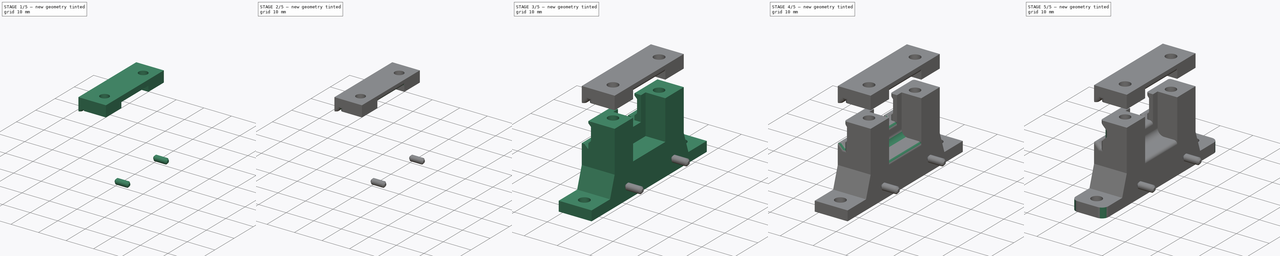
[diagram: build sequence overview — one tinted view per stage of 5, left to right]
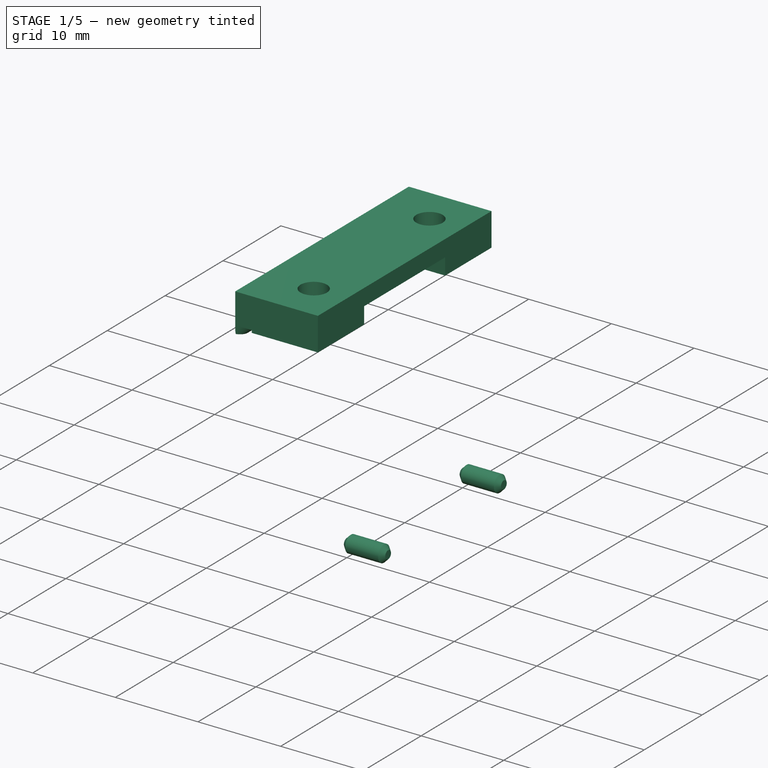
[diagram: stage 1 of 5 — iso view after this stage's code; geometry added in this stage tinted green]
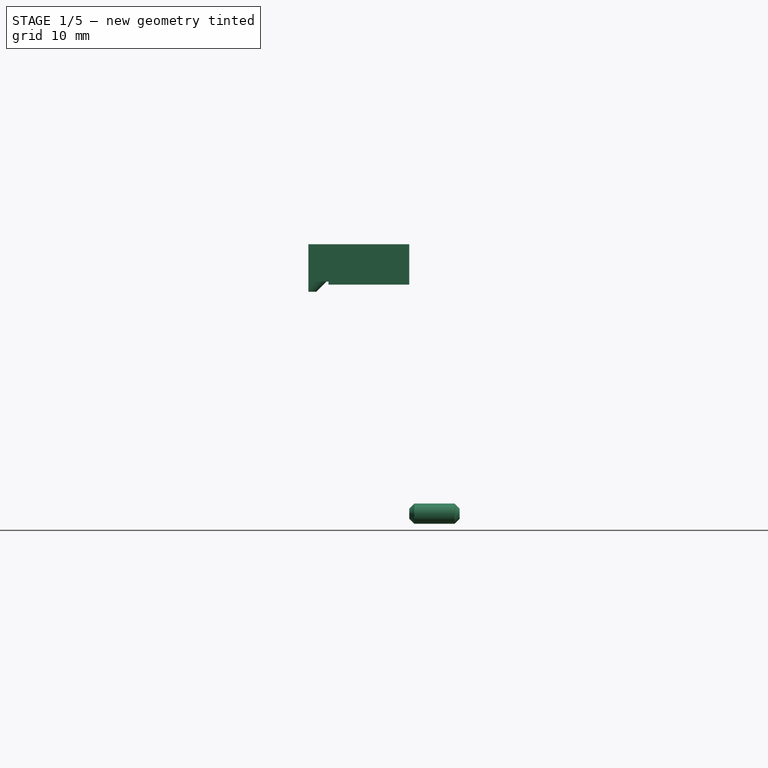
[diagram: stage 1 of 5 — front view after this stage's code; geometry added in this stage tinted green]
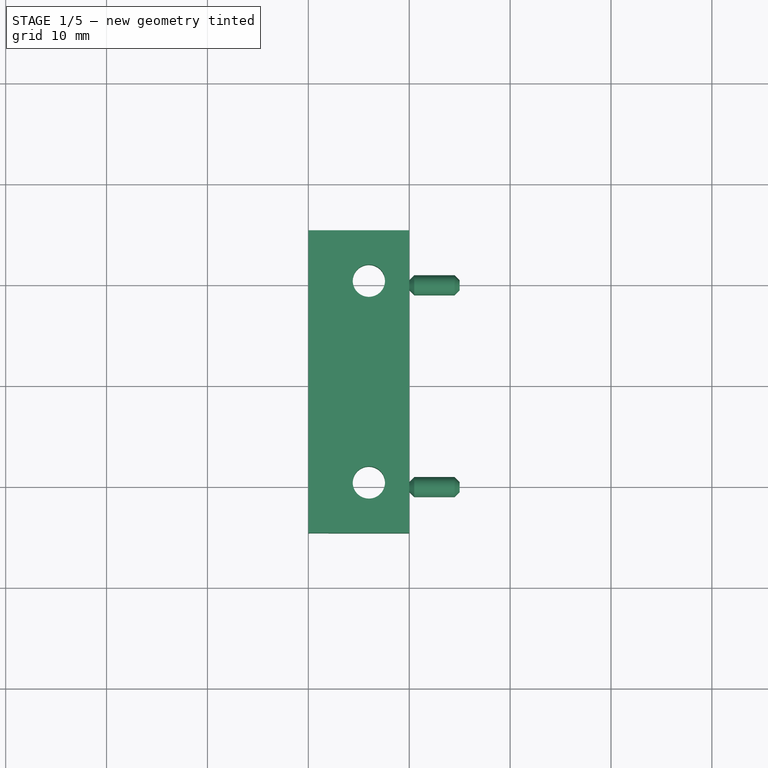
[diagram: stage 1 of 5 — top view after this stage's code; geometry added in this stage tinted green]
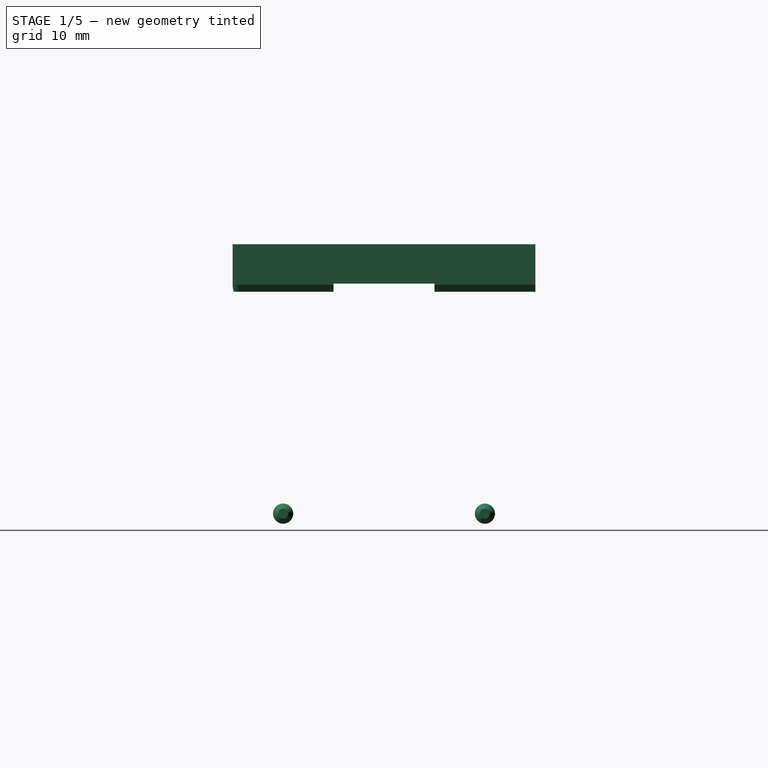
[diagram: stage 1 of 5 — right view after this stage's code; geometry added in this stage tinted green]
FCSTD DOCUMENT  (FreeCAD 0.14R3669 (Git) (Packman))
Label: gate3
License: CC-BY 3.0
LicenseURL: http://creativecommons.org/licenses/by/3.0/
objects: PartDesign::Fillet×24, Sketcher::SketchObject×12, PartDesign::Pocket×7, PartDesign::Pad×5, Part::Feature×4, Part::MultiFuse×3, Part::Box×2, Part::Cylinder×2, PartDesign::Chamfer×2
note: 73 computed .brp shape members not serialized (recipe doc carries the construction recipe); baked Part::Feature solids carry a one-line shape summary decoded from their .brp

FEATURE [PartDesign::Pad] Pad004
  Length = 30
  Length2 = 100
  Midplane = true
  Placement = pos=(0,0,0) rot=(1,0,0;1.5708rad)
  Sketch = -> Sketch001
  Type = 0
FEATURE [Sketcher::SketchObject] Sketch024
  ExternalGeometry = -> [Pad004]
  Placement = pos=(0,0,0) rot=(-0.707107,0,0.707107;3.14159rad)
  Support = -> Pad004 [Face3]
  sketch-geometry (4):
    g0: LineSegment StartX=-26.8 StartY=5 StartZ=0 EndX=-26 EndY=5 EndZ=0
    g1: LineSegment StartX=-26 StartY=5 StartZ=0 EndX=-26 EndY=-5 EndZ=0
    g2: LineSegment StartX=-26 StartY=-5 StartZ=0 EndX=-26.8 EndY=-5 EndZ=0
    g3: LineSegment StartX=-26.8 StartY=-5 StartZ=0 EndX=-26.8 EndY=5 EndZ=0
  constraints (12):
    c: Coincident(g0,g1)
    c: Coincident(g1,g2)
    c: Coincident(g2,g3)
    c: Coincident(g3,g0)
    c: Horizontal(g0)
    c: Horizontal(g2)
    c: Vertical(g1)
    c: Vertical(g3)
    c: Symmetric(g2,g0,g-1)
    c: DistanceY(g3) = 10
    c: DistanceX(g2) = -0.8
    c: PointOnObject(g0,g-3)
FEATURE [PartDesign::Pocket] Pocket002
  Length = 5
  Placement = pos=(0,0,0) rot=(1,0,0;1.5708rad)
  Sketch = -> Sketch024
  Type = 1
FEATURE [Sketcher::SketchObject] Sketch025
  ExternalGeometry = -> [Pocket002]
  Placement = pos=(10,0,0) rot=(0.707107,0,0.707107;3.14159rad)
  Support = -> Pocket002 [Face12]
  sketch-geometry (4):
    g0: LineSegment StartX=26.7 StartY=7 StartZ=0 EndX=28.7 EndY=7 EndZ=0
    g1: LineSegment StartX=28.7 StartY=7 StartZ=0 EndX=28.7 EndY=-7 EndZ=0
    g2: LineSegment StartX=28.7 StartY=-7 StartZ=0 EndX=26.7 EndY=-7 EndZ=0
    g3: LineSegment StartX=26.7 StartY=-7 StartZ=0 EndX=26.7 EndY=7 EndZ=0
  constraints (12):
    c: Coincident(g0,g1)
    c: Coincident(g1,g2)
    c: Coincident(g2,g3)
    c: Coincident(g3,g0)
    c: Horizontal(g0)
    c: Horizontal(g2)
    c: Vertical(g1)
    c: Vertical(g3)
    c: PointOnObject(g0,g-3)
    c: Symmetric(g1,g0,g-1)
    c: DistanceY(g1) = -14
    c: DistanceX(g2) = -2
FEATURE [PartDesign::Pocket] Pocket003
  Length = 6
  Placement = pos=(0,0,0) rot=(1,0,0;1.5708rad)
  Sketch = -> Sketch025
  Type = 0
FEATURE [Sketcher::SketchObject] Sketch027
  Placement = pos=(0,0,30.7) rot=(0,0,1;3.14159rad)
  Support = -> Pocket003 [Face11]
  sketch-geometry (2):
    g0: Circle CenterX=-6 CenterY=10 CenterZ=0 NormalX=0 NormalY=0 NormalZ=1 Radius=1.6
    g1: Circle CenterX=-6 CenterY=-10 CenterZ=0 NormalX=0 NormalY=0 NormalZ=1 Radius=1.6
  constraints (5):
    c: Equal(g1,g0)
    c: Symmetric(g0,g1,g-1)
    c: Radius(g0) = 1.6
    c: DistanceX(g-1,g0) = -6
    c: DistanceY(g-1,g0) = 10
FEATURE [PartDesign::Pocket] Pocket005
  Length = 5
  Placement = pos=(0,0,0) rot=(1,0,0;1.5708rad)
  Sketch = -> Sketch027
  Type = 1
FEATURE [PartDesign::Fillet] Fillet006
  Base = -> Pocket005 [Edge7]
  Placement = pos=(0,0,0) rot=(1,0,0;1.5708rad)
  Radius = 1
FEATURE [Part::Feature] Fillet023001  label="Top002"
  shape: bbox 10.31 x 30 x 5.1 mm, 35 faces (baked)
FEATURE [Part::Feature] Fusion002001  label="Body001"
  shape: bbox 10.6 x 50 x 22.2 mm, 97 faces (baked)
FEATURE [Part::Feature] Fusion002001_solid  label="Body001 (Solid)"
  shape: bbox 10.6 x 50 x 22.2 mm, 97 faces (baked)
FEATURE [Part::Feature] Fillet023001_solid  label="Top002 (Solid)"
  Placement = pos=(25,0,-25) rot=(0,0,1;3.14159rad)
  shape: bbox 10.31 x 30 x 5.1 mm, 35 faces (baked)
FEATURE [Part::Cylinder] Cylinder
  Angle = 360
  Height = 5
  Placement = pos=(10,-10,4) rot=(0.707107,0,0.707107;3.14159rad)
  Radius = 1
FEATURE [PartDesign::Chamfer] Chamfer
  Base = -> Cylinder [Edge1,Edge3]
  Placement = pos=(10,-10,4) rot=(0.707107,0,0.707107;3.14159rad)
  Size = 0.5
FEATURE [Part::Cylinder] Cylinder001
  Angle = 360
  Height = 5
  Placement = pos=(10,10,4) rot=(0.707107,0,0.707107;3.14159rad)
  Radius = 1
FEATURE [PartDesign::Chamfer] Chamfer001
  Base = -> Cylinder001 [Edge1,Edge3]
  Placement = pos=(10,10,4) rot=(0.707107,0,0.707107;3.14159rad)
  Size = 0.5
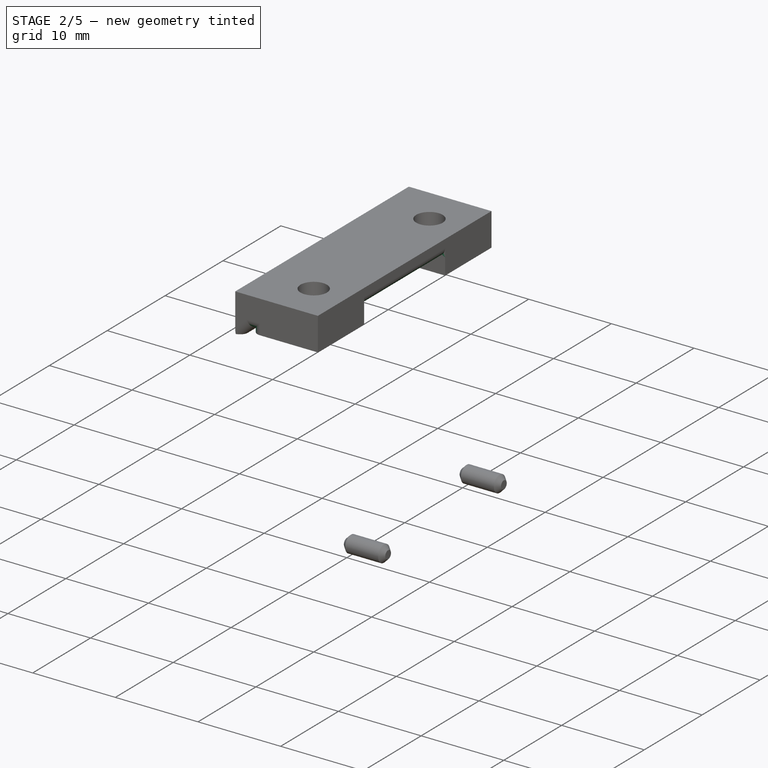
[diagram: stage 2 of 5 — iso view after this stage's code; geometry added in this stage tinted green]
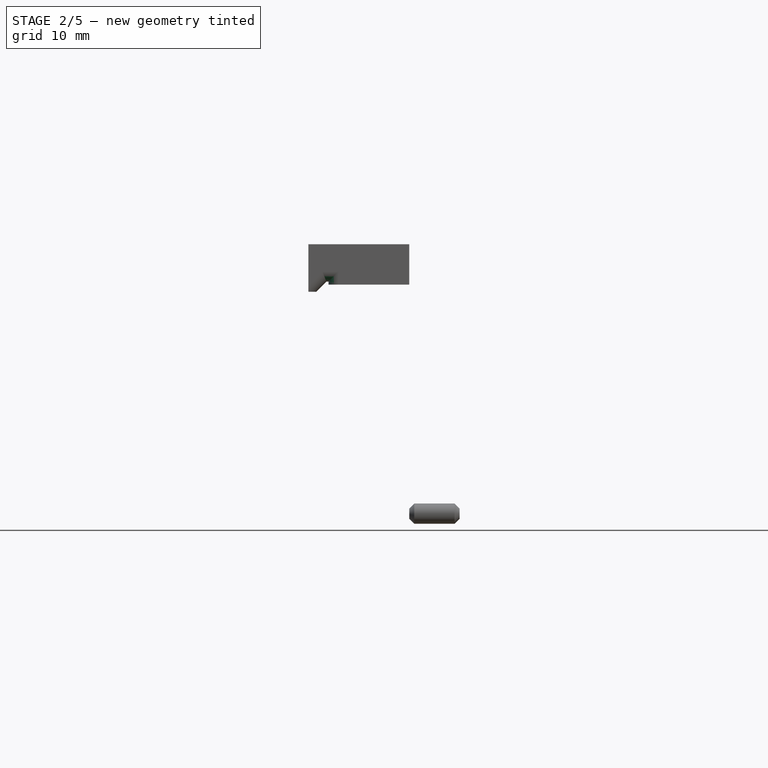
[diagram: stage 2 of 5 — front view after this stage's code; geometry added in this stage tinted green]
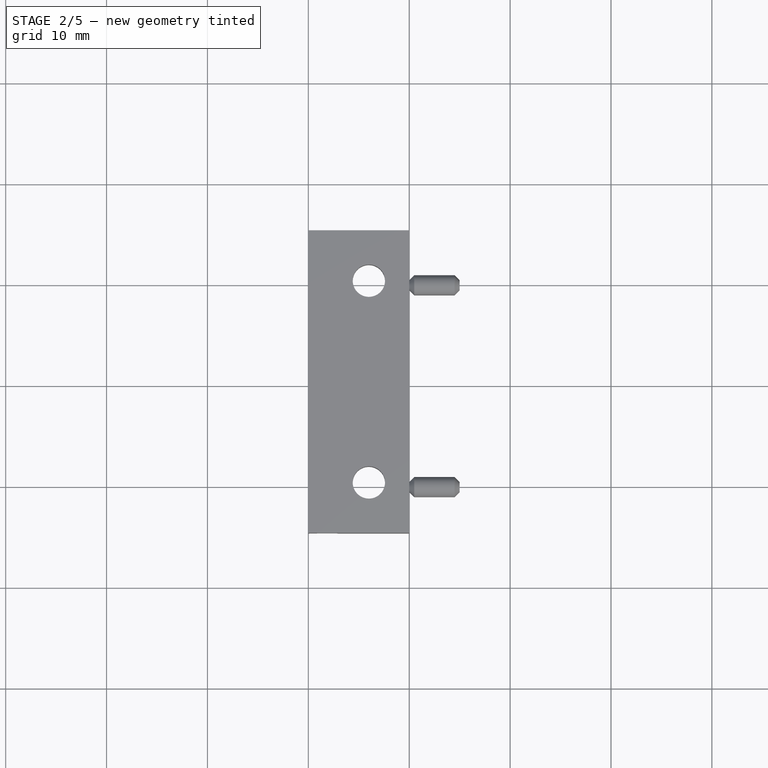
[diagram: stage 2 of 5 — top view after this stage's code; geometry added in this stage tinted green]
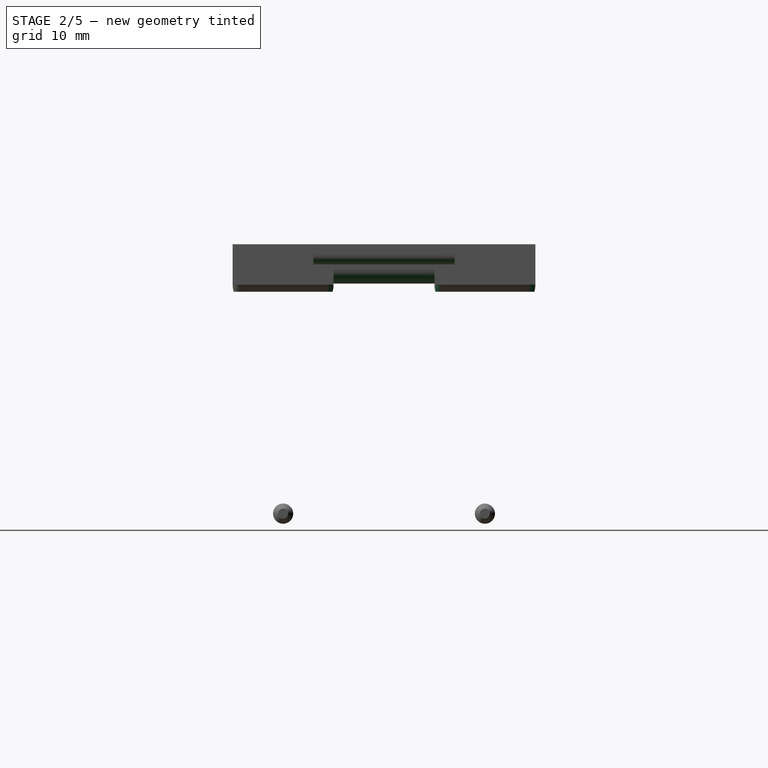
[diagram: stage 2 of 5 — right view after this stage's code; geometry added in this stage tinted green]
FEATURE [PartDesign::Fillet] Fillet007
  Base = -> Fillet006 [Edge6]
  Placement = pos=(0,0,0) rot=(1,0,0;1.5708rad)
  Radius = 1
FEATURE [PartDesign::Fillet] Fillet008
  Base = -> Fillet007 [Edge11]
  Placement = pos=(0,0,0) rot=(1,0,0;1.5708rad)
  Radius = 1
FEATURE [PartDesign::Fillet] Fillet009
  Base = -> Fillet008 [Edge5]
  Placement = pos=(0,0,0) rot=(1,0,0;1.5708rad)
  Radius = 1
FEATURE [PartDesign::Fillet] Fillet010
  Base = -> Fillet009 [Edge24,Edge25]
  Placement = pos=(0,0,0) rot=(1,0,0;1.5708rad)
  Radius = 1
FEATURE [PartDesign::Fillet] Fillet012
  Base = -> Fillet010 [Edge85]
  Placement = pos=(0,0,0) rot=(1,0,0;1.5708rad)
  Radius = 1.5
FEATURE [PartDesign::Fillet] Fillet015
  Base = -> Fillet012 [Edge60]
  Placement = pos=(0,0,0) rot=(1,0,0;1.5708rad)
  Radius = 1
FEATURE [PartDesign::Fillet] Fillet020  label="Top"
  Base = -> Fillet015 [Edge78]
  Placement = pos=(0,0,0) rot=(1,0,0;1.5708rad)
  Radius = 1
FEATURE [PartDesign::Fillet] Fillet022
  Base = -> Fillet020 [Edge48]
  Placement = pos=(0,0,0) rot=(1,0,0;1.5708rad)
  Radius = 1
FEATURE [PartDesign::Fillet] Fillet023  label="Top1"
  Base = -> Fillet022 [Edge54]
  Placement = pos=(0,0,0) rot=(1,0,0;1.5708rad)
  Radius = 1
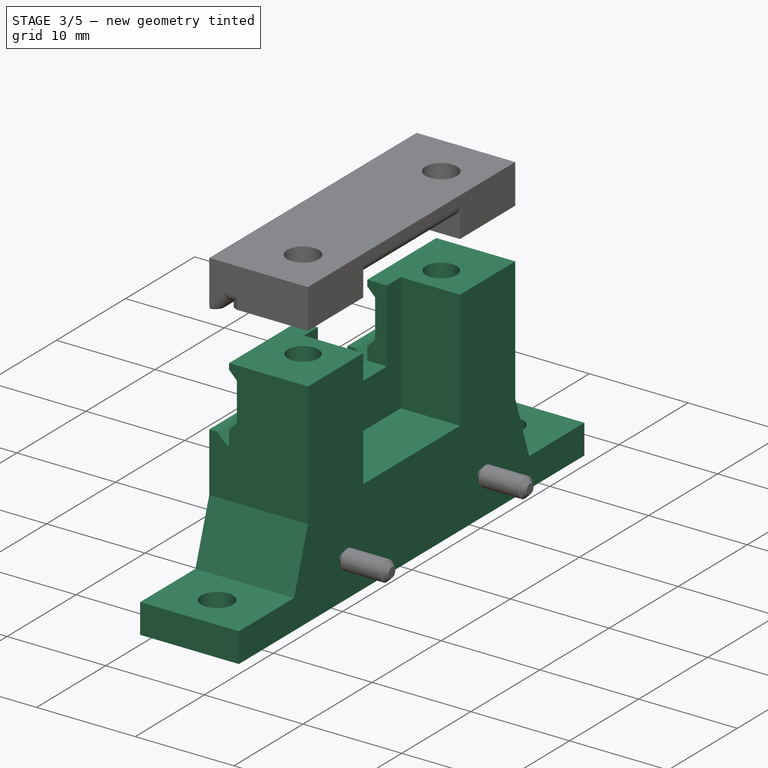
[diagram: stage 3 of 5 — iso view after this stage's code; geometry added in this stage tinted green]
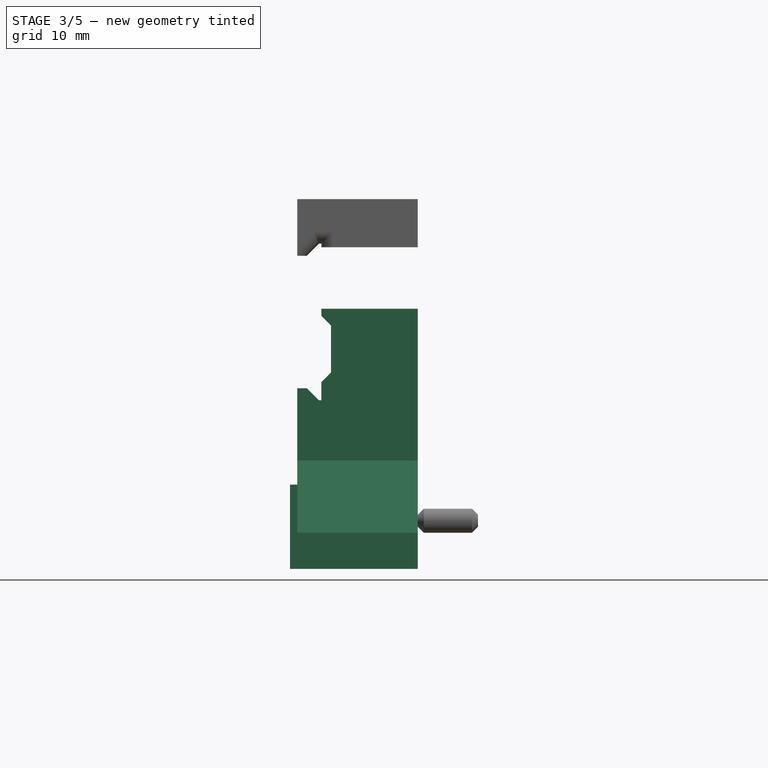
[diagram: stage 3 of 5 — front view after this stage's code; geometry added in this stage tinted green]
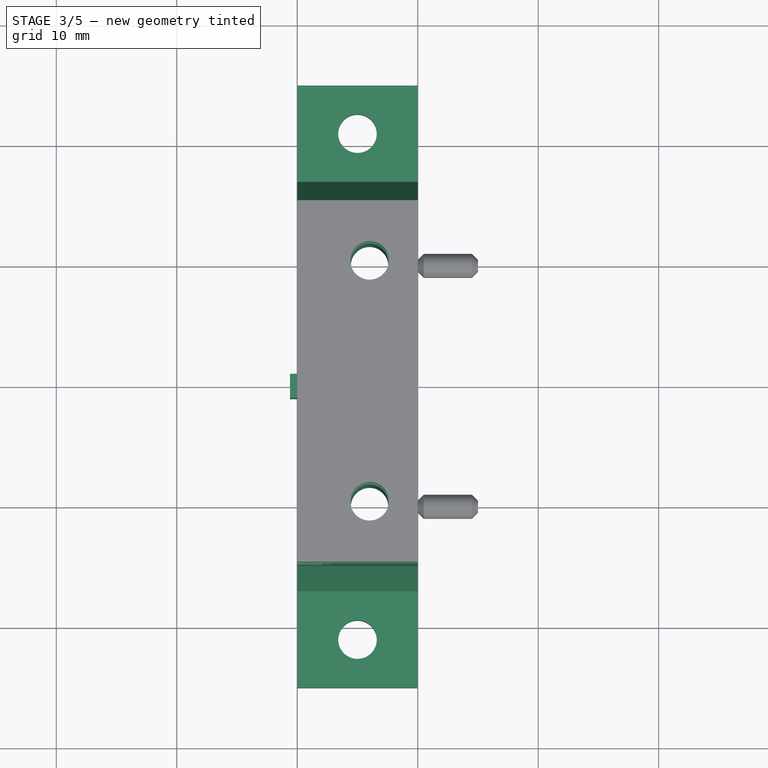
[diagram: stage 3 of 5 — top view after this stage's code; geometry added in this stage tinted green]
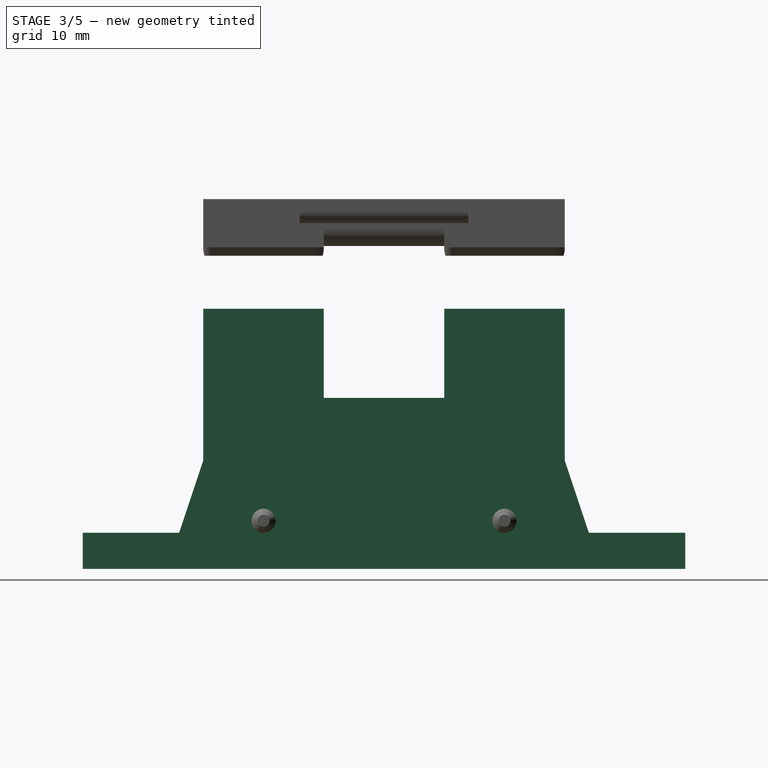
[diagram: stage 3 of 5 — right view after this stage's code; geometry added in this stage tinted green]
FEATURE [Sketcher::SketchObject] Sketch
  Placement = pos=(0,0,0) rot=(1,0,0;1.5708rad)
  sketch-geometry (14):
    g0: LineSegment StartX=0 StartY=0 StartZ=0 EndX=10 EndY=0 EndZ=0
    g1: LineSegment StartX=2.8 StartY=16.3 StartZ=0 EndX=2 EndY=15.5 EndZ=0
    g2: LineSegment StartX=2 StartY=15.5 StartZ=0 EndX=2 EndY=14 EndZ=0
    g3: LineSegment StartX=0.8 StartY=15 StartZ=0 EndX=0 EndY=15 EndZ=0
    g4: LineSegment StartX=0 StartY=15 StartZ=0 EndX=0 EndY=0 EndZ=0
    g5: LineSegment StartX=10 StartY=0 StartZ=0 EndX=10 EndY=21.6 EndZ=0
    g6: LineSegment StartX=2 StartY=21.6 StartZ=0 EndX=10 EndY=21.6 EndZ=0
    g7: LineSegment StartX=2 StartY=14 StartZ=0 EndX=1.8 EndY=14 EndZ=0
    g8: LineSegment StartX=0.8 StartY=15 StartZ=0 EndX=1.8 EndY=14 EndZ=0
    g9: GeomPoint [constr] X=1.8 Y=14 Z=0
    g10: LineSegment StartX=2.8 StartY=16.3 StartZ=0 EndX=2.8 EndY=20.2 EndZ=0
    g11: LineSegment StartX=2.8 StartY=20.2 StartZ=0 EndX=2 EndY=21 EndZ=0
    g12: LineSegment StartX=2 StartY=21 StartZ=0 EndX=2 EndY=21.6 EndZ=0
    g13: GeomPoint [constr] X=2 Y=21.6 Z=0
  constraints (37):
    c: Horizontal(g0)
    c: Coincident(g1,g2)
    c: Vertical(g2)
    c: Coincident(g3,g4)
    c: Coincident(g4,g-1)
    c: Vertical(g4)
    c: DistanceX(g0) = 10
    c: DistanceY(g-1,g2) = 14
    c: DistanceX(g1,g2) = -0.8
    c: Horizontal(g3)
    c: Coincident(g0,g-1)
    c: DistanceY(g2,g3) = 1
    c: DistanceX(g1,g3) = -2
    c: Coincident(g5,g0)
    c: Vertical(g5)
    c: Horizontal(g6)
    c: Coincident(g6,g5)
    c: DistanceX(g3) = -0.8
    c: Coincident(g7,g2)
    c: Horizontal(g7)
    c: DistanceX(g7) = -0.2
    c: Coincident(g8,g3)
    c: Coincident(g9,g8)
    c: Coincident(g7,g8)
    c: Coincident(g1,g10)
    c: Vertical(g10)
    c: Coincident(g10,g11)
    c: Coincident(g11,g12)
    c: Vertical(g12)
    c: Coincident(g13,g12)
    c: Coincident(g6,g12)
    c: DistanceY(g12) = 0.6
    c: DistanceX(g-1,g6) = 2
    c: Angle(g11,g10) = 2.35619
    c: DistanceY(g6,g2) = -7.6
    c: DistanceY(g2) = -1.5
    c: Angle(g10,g1) = 2.35619
FEATURE [Sketcher::SketchObject] Sketch020
  Placement = pos=(0,0,0) rot=(1,0,0;3.14159rad)
  sketch-geometry (10):
    g0: LineSegment StartX=0 StartY=15 StartZ=0 EndX=10 EndY=15 EndZ=0
    g1: LineSegment StartX=10 StartY=15 StartZ=0 EndX=10 EndY=25 EndZ=0
    g2: LineSegment StartX=10 StartY=25 StartZ=0 EndX=0 EndY=25 EndZ=0
    g3: LineSegment StartX=0 StartY=25 StartZ=0 EndX=0 EndY=15 EndZ=0
    g4: LineSegment StartX=0 StartY=-15 StartZ=0 EndX=10 EndY=-15 EndZ=0
    g5: LineSegment StartX=10 StartY=-15 StartZ=0 EndX=10 EndY=-25 EndZ=0
    g6: LineSegment StartX=10 StartY=-25 StartZ=0 EndX=0 EndY=-25 EndZ=0
    g7: LineSegment StartX=0 StartY=-25 StartZ=0 EndX=0 EndY=-15 EndZ=0
    g8: Circle CenterX=5 CenterY=21 CenterZ=0 NormalX=0 NormalY=0 NormalZ=1 Radius=1.6
    g9: Circle CenterX=5 CenterY=-21 CenterZ=0 NormalX=0 NormalY=0 NormalZ=1 Radius=1.6
  constraints (36):
    c: Coincident(g0,g1)
    c: Coincident(g1,g2)
    c: Coincident(g2,g3)
    c: Coincident(g3,g0)
    c: PointOnObject(g0,g-2)
    c: Coincident(g4,g5)
    c: Coincident(g5,g6)
    c: Coincident(g6,g7)
    c: Coincident(g7,g4)
    c: PointOnObject(g4,g-2)
    c: Equal(g0,g4)
    c: Equal(g5,g4)
    c: Symmetric(g0,g4,g-1)
    c: DistanceY(g-1,g0) = 15
    c: Equal(g2,g1)
    c: Symmetric(g9,g8,g-1)
    c: DistanceX(g8,g0) = -5
    c: DistanceY(g8,g0) = -6
    c: Vertical(g1)
    c: Vertical(g3)
    c: Horizontal(g2)
    c: DistanceY(g1) = 10
    c: DistanceY(g7) = 10
    c: Horizontal(g6)
    c: Vertical(g5)
    c: Vertical(g7)
    c: Horizontal(g0)
    c: Equal(g7,g4)
    c: Equal(g4,g5)
    c: Equal(g5,g6)
    c: Equal(g3,g2)
    c: Equal(g2,g1)
    c: Equal(g1,g0)
    c: Equal(g3,g2)
    c: Radius(g8) = 1.6
    c: Equal(g9,g8)
FEATURE [PartDesign::Pad] Pad002
  Length = 3
  Length2 = 100
  Placement = pos=(0,0,0) rot=(1,0,0;3.14159rad)
  Reversed = true
  Sketch = -> Sketch020
  Type = 0
FEATURE [Sketcher::SketchObject] Sketch001
  Placement = pos=(0,0,0) rot=(1,0,0;1.5708rad)
  sketch-geometry (8):
    g0: LineSegment StartX=1.8 StartY=27 StartZ=0 EndX=0.8 EndY=26 EndZ=0
    g1: LineSegment StartX=0 StartY=26 StartZ=0 EndX=0 EndY=30.7 EndZ=0
    g2: LineSegment StartX=0 StartY=30.7 StartZ=0 EndX=10 EndY=30.7 EndZ=0
    g3: LineSegment StartX=2 StartY=26.7 StartZ=0 EndX=10 EndY=26.7 EndZ=0
    g4: LineSegment StartX=10 StartY=30.7 StartZ=0 EndX=10 EndY=26.7 EndZ=0
    g5: LineSegment StartX=0 StartY=26 StartZ=0 EndX=0.8 EndY=26 EndZ=0
    g6: LineSegment StartX=1.8 StartY=27 StartZ=0 EndX=2 EndY=27 EndZ=0
    g7: LineSegment StartX=2 StartY=26.7 StartZ=0 EndX=2 EndY=27 EndZ=0
  constraints (23):
    c: Coincident(g1,g2)
    c: DistanceX(g1,g2) = 10
    c: Tangent(g1,g-2)
    c: Coincident(g4,g2)
    c: Vertical(g4)
    c: Horizontal(g2)
    c: Horizontal(g3)
    c: Coincident(g3,g4)
    c: Coincident(g5,g1)
    c: Coincident(g5,g0)
    c: Angle(g0,g5) = 2.35619
    c: Horizontal(g5)
    c: Coincident(g6,g0)
    c: Horizontal(g6)
    c: DistanceX(g6) = 0.2
    c: Coincident(g7,g3)
    c: Vertical(g7)
    c: Coincident(g6,g7)
    c: DistanceX(g5) = 0.8
    c: DistanceY(g7) = 0.3
    c: DistanceY(g4) = -4
    c: DistanceX(g-1,g6) = 2
    c: DistanceY(g-1,g1) = 26
FEATURE [PartDesign::Pad] Pad
  Length = 30
  Length2 = 100
  Midplane = true
  Placement = pos=(0,0,0) rot=(1,0,0;1.5708rad)
  Sketch = -> Sketch
  Type = 0
FEATURE [Sketcher::SketchObject] Sketch021
  Placement = pos=(10,0,0) rot=(0.707107,0,0.707107;3.14159rad)
  Support = -> Pad [Face4]
  sketch-geometry (6):
    g0: LineSegment StartX=3 StartY=-17 StartZ=0 EndX=9 EndY=-15 EndZ=0
    g1: LineSegment StartX=9 StartY=-15 StartZ=0 EndX=3 EndY=-15 EndZ=0
    g2: LineSegment StartX=3 StartY=-15 StartZ=0 EndX=3 EndY=-17 EndZ=0
    g3: LineSegment StartX=3 StartY=15 StartZ=0 EndX=9 EndY=15 EndZ=0
    g4: LineSegment StartX=9 StartY=15 StartZ=0 EndX=3 EndY=17 EndZ=0
    g5: LineSegment StartX=3 StartY=17 StartZ=0 EndX=3 EndY=15 EndZ=0
  constraints (17):
    c: Coincident(g0,g1)
    c: Horizontal(g1)
    c: Coincident(g1,g2)
    c: Coincident(g2,g0)
    c: Vertical(g2)
    c: Horizontal(g3)
    c: Coincident(g3,g4)
    c: Coincident(g4,g5)
    c: Coincident(g5,g3)
    c: Vertical(g5)
    c: DistanceY(g5) = -2
    c: DistanceX(g3) = 6
    c: DistanceX(g-1,g3) = 3
    c: Equal(g1,g3)
    c: Equal(g2,g5)
    c: Symmetric(g1,g3,g-1)
    c: DistanceY(g-1,g3) = 15
FEATURE [PartDesign::Pad] Pad005
  Length = 10
  Length2 = 100
  Placement = pos=(0,0,0) rot=(1,0,0;1.5708rad)
  Reversed = true
  Sketch = -> Sketch021
  Type = 0
FEATURE [Sketcher::SketchObject] Sketch022
  ExternalGeometry = -> [Pad005]
  Placement = pos=(10,0,0) rot=(0.707107,0,0.707107;3.14159rad)
  Support = -> Pad005 [Face13]
  sketch-geometry (4):
    g0: LineSegment StartX=9.6 StartY=7 StartZ=0 EndX=21.6 EndY=7 EndZ=0
    g1: LineSegment StartX=21.6 StartY=7 StartZ=0 EndX=21.6 EndY=-7 EndZ=0
    g2: LineSegment StartX=21.6 StartY=-7 StartZ=0 EndX=9.6 EndY=-7 EndZ=0
    g3: LineSegment StartX=9.6 StartY=-7 StartZ=0 EndX=9.6 EndY=7 EndZ=0
  constraints (12):
    c: Coincident(g0,g1)
    c: Coincident(g1,g2)
    c: Coincident(g2,g3)
    c: Coincident(g3,g0)
    c: Horizontal(g0)
    c: Horizontal(g2)
    c: Vertical(g1)
    c: Vertical(g3)
    c: DistanceX(g0) = 12
    c: PointOnObject(g0,g-3)
    c: DistanceY(g3) = 14
    c: Symmetric(g2,g0,g-1)
FEATURE [PartDesign::Pocket] Pocket
  Length = 6
  Placement = pos=(0,0,0) rot=(1,0,0;1.5708rad)
  Sketch = -> Sketch022
  Type = 0
FEATURE [Sketcher::SketchObject] Sketch023
  Placement = pos=(4,0,0) rot=(0.707107,0,0.707107;3.14159rad)
  Support = -> Pocket [Face28]
  sketch-geometry (4):
    g0: LineSegment StartX=14.2 StartY=5 StartZ=0 EndX=21.6 EndY=5 EndZ=0
    g1: LineSegment StartX=21.6 StartY=5 StartZ=0 EndX=21.6 EndY=-5 EndZ=0
    g2: LineSegment StartX=21.6 StartY=-5 StartZ=0 EndX=14.2 EndY=-5 EndZ=0
    g3: LineSegment StartX=14.2 StartY=-5 StartZ=0 EndX=14.2 EndY=5 EndZ=0
  constraints (11):
    c: Coincident(g0,g1)
    c: Coincident(g1,g2)
    c: Coincident(g2,g3)
    c: Coincident(g3,g0)
    c: Horizontal(g0)
    c: Horizontal(g2)
    c: Vertical(g1)
    c: Vertical(g3)
    c: Symmetric(g0,g2,g-1)
    c: DistanceX(g0) = 7.4
    c: DistanceY(g3) = 10
FEATURE [PartDesign::Pocket] Pocket001
  Length = 5
  Placement = pos=(0,0,0) rot=(1,0,0;1.5708rad)
  Sketch = -> Sketch023
  Type = 1
FEATURE [Sketcher::SketchObject] Sketch026
  Placement = pos=(0,0,21.6) rot=(0,0,1;3.14159rad)
  Support = -> Pocket001 [Face29]
  sketch-geometry (2):
    g0: Circle CenterX=-6 CenterY=10 CenterZ=0 NormalX=0 NormalY=0 NormalZ=1 Radius=1.55
    g1: Circle CenterX=-6 CenterY=-10 CenterZ=0 NormalX=0 NormalY=0 NormalZ=1 Radius=1.55
  constraints (5):
    c: Symmetric(g1,g0,g-1)
    c: Equal(g0,g1)
    c: Radius(g0) = 1.55
    c: DistanceY(g-1,g0) = 10
    c: DistanceX(g-1,g0) = -6
FEATURE [PartDesign::Pocket] Pocket004
  Length = 5
  Placement = pos=(0,0,0) rot=(1,0,0;1.5708rad)
  Sketch = -> Sketch026
  Type = 1
FEATURE [Sketcher::SketchObject] Sketch028
  Placement = pos=(0,0,0) rot=(1,0,0;3.14159rad)
  Support = -> Pocket004 [Face17]
  sketch-geometry (20):
    g0: LineSegment StartX=3.2 StartY=11.6166 StartZ=0 EndX=6 EndY=13.2332 EndZ=0
    g1: LineSegment StartX=6 StartY=13.2332 StartZ=0 EndX=8.8 EndY=11.6166 EndZ=0
    g2: LineSegment StartX=8.8 StartY=11.6166 StartZ=0 EndX=8.8 EndY=8.38342 EndZ=0
    g3: LineSegment StartX=8.8 StartY=8.38342 StartZ=0 EndX=6 EndY=6.76684 EndZ=0
    g4: LineSegment StartX=6 StartY=6.76684 StartZ=0 EndX=3.2 EndY=8.38342 EndZ=0
    g5: LineSegment StartX=3.2 StartY=8.38342 StartZ=0 EndX=3.2 EndY=11.6166 EndZ=0
    g6: LineSegment [constr] StartX=3.2 StartY=8.38342 StartZ=0 EndX=8.8 EndY=11.6166 EndZ=0
    g7: LineSegment [constr] StartX=6 StartY=6.76684 StartZ=0 EndX=6 EndY=13.2332 EndZ=0
    g8: LineSegment [constr] StartX=3.2 StartY=11.6166 StartZ=0 EndX=8.8 EndY=8.38342 EndZ=0
    g9: GeomPoint [constr] X=6 Y=10 Z=0
    g10: GeomPoint [constr] X=6 Y=-10 Z=0
    g11: LineSegment StartX=6 StartY=-6.76684 StartZ=0 EndX=8.8 EndY=-8.38342 EndZ=0
    g12: LineSegment StartX=8.8 StartY=-8.38342 StartZ=0 EndX=8.8 EndY=-11.6166 EndZ=0
    g13: LineSegment StartX=8.8 StartY=-11.6166 StartZ=0 EndX=6 EndY=-13.2332 EndZ=0
    g14: LineSegment StartX=6 StartY=-13.2332 StartZ=0 EndX=3.2 EndY=-11.6166 EndZ=0
    g15: LineSegment StartX=3.2 StartY=-11.6166 StartZ=0 EndX=3.2 EndY=-8.38342 EndZ=0
    g16: LineSegment StartX=3.2 StartY=-8.38342 StartZ=0 EndX=6 EndY=-6.76684 EndZ=0
    g17: LineSegment [constr] StartX=6 StartY=-6.76684 StartZ=0 EndX=6 EndY=-13.2332 EndZ=0
    g18: LineSegment [constr] StartX=3.2 StartY=-11.6166 StartZ=0 EndX=8.8 EndY=-8.38342 EndZ=0
    g19: LineSegment [constr] StartX=3.2 StartY=-8.38342 StartZ=0 EndX=8.8 EndY=-11.6166 EndZ=0
  constraints (52):
    c: Coincident(g0,g1)
    c: Coincident(g1,g2)
    c: Vertical(g2)
    c: Coincident(g2,g3)
    c: Coincident(g3,g4)
    c: Coincident(g4,g5)
    c: Coincident(g5,g0)
    c: Vertical(g5)
    c: Coincident(g6,g4)
    c: Coincident(g6,g1)
    c: Coincident(g7,g3)
    c: Coincident(g7,g0)
    c: Coincident(g8,g0)
    c: Coincident(g8,g2)
    c: Equal(g8,g7)
    c: Equal(g7,g6)
    c: Equal(g4,g3)
    c: Equal(g3,g2)
    c: Equal(g2,g1)
    c: Equal(g1,g0)
    c: Equal(g0,g5)
    c: DistanceX(g4,g2) = 5.6
    c: PointOnObject(g9,g6)
    c: PointOnObject(g9,g8)
    c: DistanceX(g-1,g9) = 6
    c: DistanceY(g-1,g9) = 10
    c: Symmetric(g10,g9,g-1)
    c: Coincident(g11,g12)
    c: Vertical(g12)
    c: Coincident(g12,g13)
    c: Coincident(g13,g14)
    c: Coincident(g14,g15)
    c: Vertical(g15)
    c: Coincident(g15,g16)
    c: Coincident(g16,g11)
    c: Coincident(g17,g11)
    c: Coincident(g17,g13)
    c: Vertical(g17)
    c: PointOnObject(g10,g17)
    c: Coincident(g18,g14)
    c: Coincident(g18,g11)
    c: PointOnObject(g10,g18)
    c: Coincident(g19,g15)
    c: Coincident(g19,g12)
    c: PointOnObject(g10,g19)
    c: Equal(g11,g16)
    c: Equal(g16,g15)
    c: Equal(g15,g14)
    c: Equal(g14,g13)
    c: Equal(g13,g12)
    c: Equal(g12,g3)
    c: Equal(g17,g7)
FEATURE [PartDesign::Pocket] Pocket006
  Length = 5
  Placement = pos=(0,0,0) rot=(1,0,0;1.5708rad)
  Sketch = -> Sketch028
  Type = 0
FEATURE [Sketcher::SketchObject] Sketch029
  Placement = pos=(0,0,0) rot=(0.707107,0,-0.707107;3.14159rad)
  Support = -> Pocket006 [Face3]
  sketch-geometry (4):
    g0: LineSegment StartX=-7 StartY=1 StartZ=0 EndX=0 EndY=1 EndZ=0
    g1: LineSegment StartX=0 StartY=1 StartZ=0 EndX=0 EndY=-1 EndZ=0
    g2: LineSegment StartX=0 StartY=-1 StartZ=0 EndX=-7 EndY=-1 EndZ=0
    g3: LineSegment StartX=-7 StartY=-1 StartZ=0 EndX=-7 EndY=1 EndZ=0
  constraints (12):
    c: Coincident(g0,g1)
    c: Coincident(g1,g2)
    c: Coincident(g2,g3)
    c: Coincident(g3,g0)
    c: Horizontal(g0)
    c: Horizontal(g2)
    c: Vertical(g1)
    c: Vertical(g3)
    c: PointOnObject(g1,g-2)
    c: DistanceY(g3) = 2
    c: Symmetric(g0,g2,g-1)
    c: DistanceX(g2) = -7
FEATURE [PartDesign::Pad] Pad006
  Length = 0.6
  Length2 = 100
  Placement = pos=(0,0,0) rot=(1,0,0;1.5708rad)
  Sketch = -> Sketch029
  Type = 0
FEATURE [Part::MultiFuse] Fusion
  Shapes = -> [Pad002,Pad006]
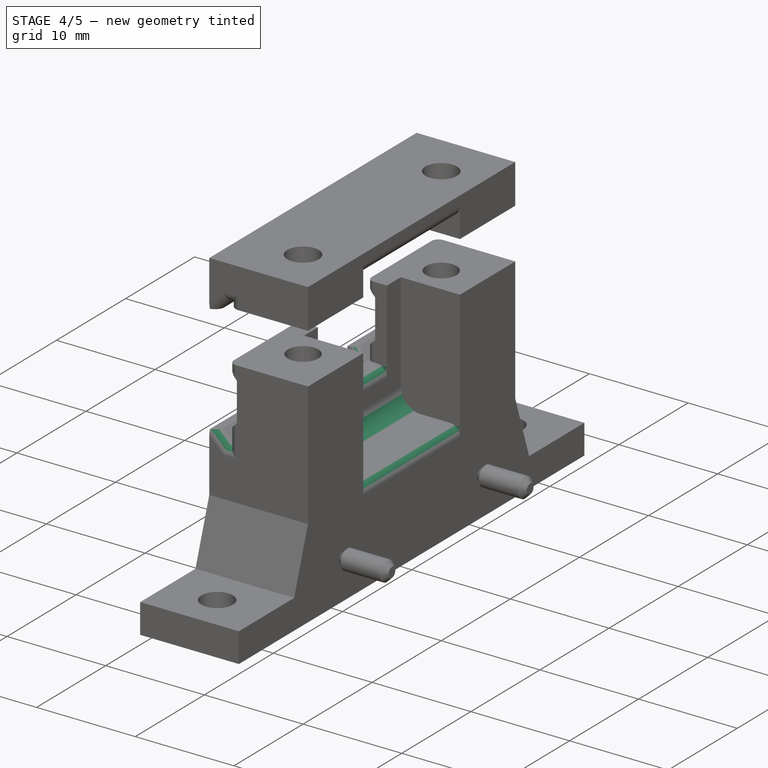
[diagram: stage 4 of 5 — iso view after this stage's code; geometry added in this stage tinted green]
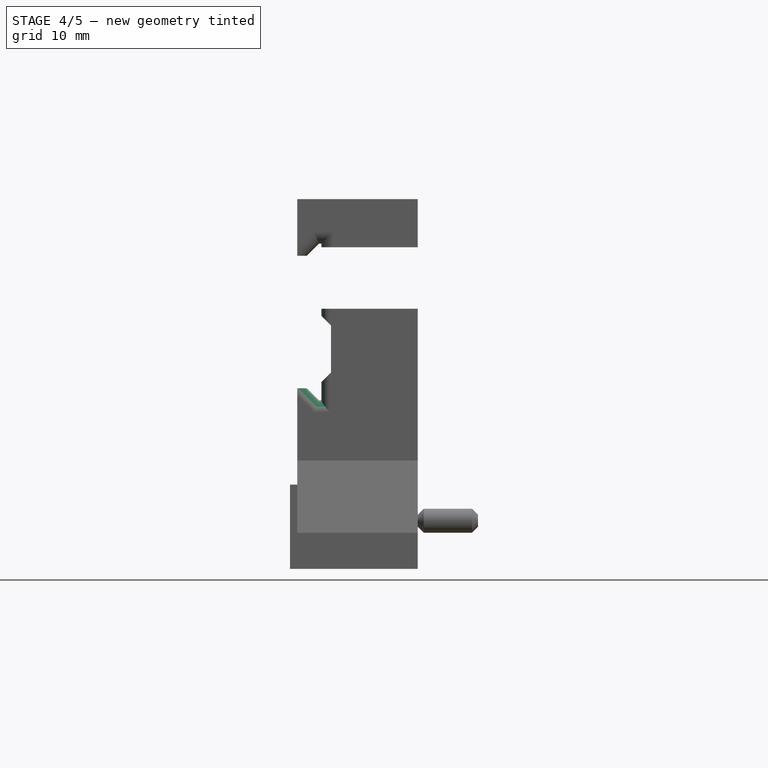
[diagram: stage 4 of 5 — front view after this stage's code; geometry added in this stage tinted green]
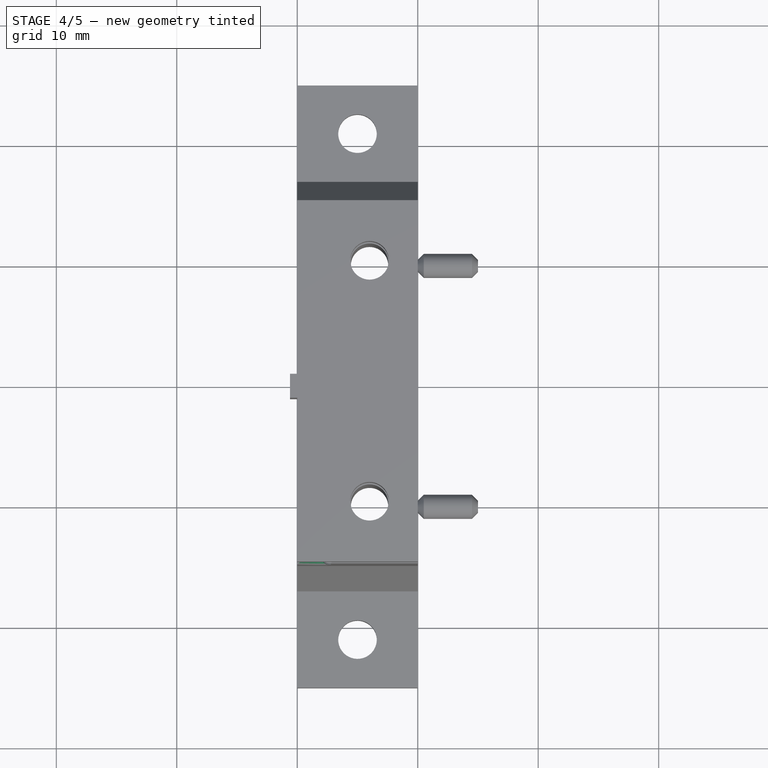
[diagram: stage 4 of 5 — top view after this stage's code; geometry added in this stage tinted green]
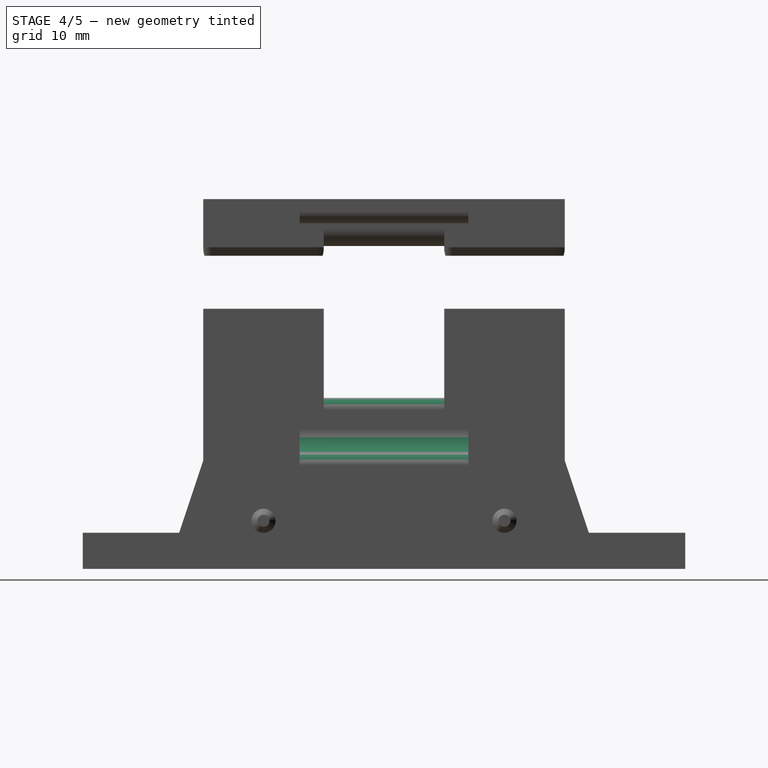
[diagram: stage 4 of 5 — right view after this stage's code; geometry added in this stage tinted green]
FEATURE [PartDesign::Fillet] Fillet
  Base = -> Fusion [Edge13,Edge9,Edge100,Edge65]
  Radius = 0.7
FEATURE [PartDesign::Fillet] Fillet001
  Base = -> Fillet [Edge151,Edge147,Edge78,Edge73]
  Radius = 0.6
FEATURE [PartDesign::Fillet] Fillet002
  Base = -> Fillet001 [Edge90,Edge92]
  Radius = 0.6
FEATURE [PartDesign::Fillet] Fillet003
  Base = -> Fillet002 [Edge81,Edge33]
  Radius = 1
FEATURE [PartDesign::Fillet] Fillet004
  Base = -> Fillet003 [Edge84]
  Radius = 1
FEATURE [PartDesign::Fillet] Fillet005
  Base = -> Fillet004 [Edge94]
  Radius = 1
FEATURE [PartDesign::Fillet] Fillet011
  Base = -> Fillet005 [Edge50]
  Radius = 1
FEATURE [PartDesign::Fillet] Fillet013
  Base = -> Fillet011 [Edge41]
  Radius = 2
FEATURE [PartDesign::Fillet] Fillet014
  Base = -> Fillet013 [Edge49]
  Radius = 1
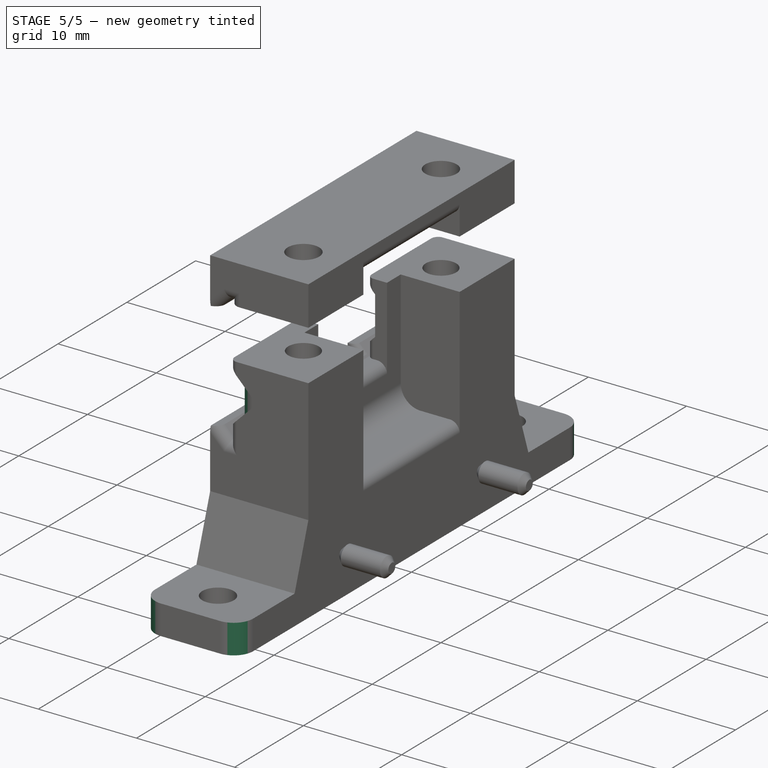
[diagram: stage 5 of 5 — iso view after this stage's code; geometry added in this stage tinted green]
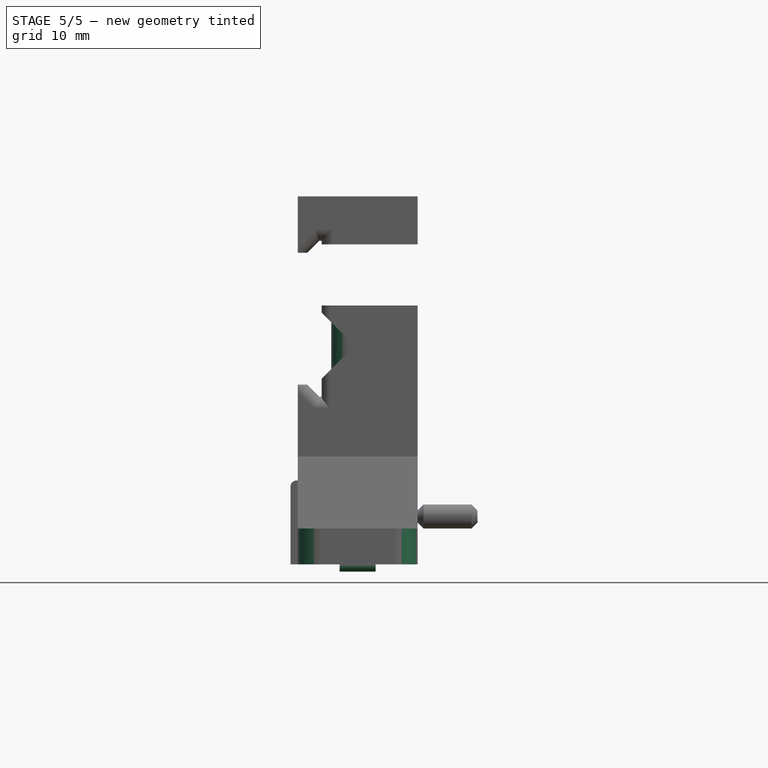
[diagram: stage 5 of 5 — front view after this stage's code; geometry added in this stage tinted green]
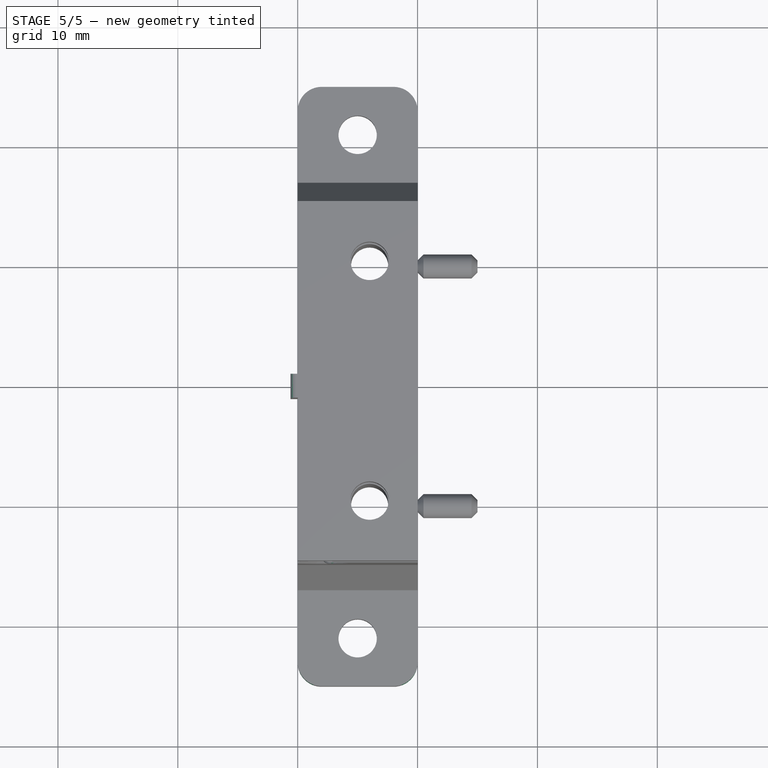
[diagram: stage 5 of 5 — top view after this stage's code; geometry added in this stage tinted green]
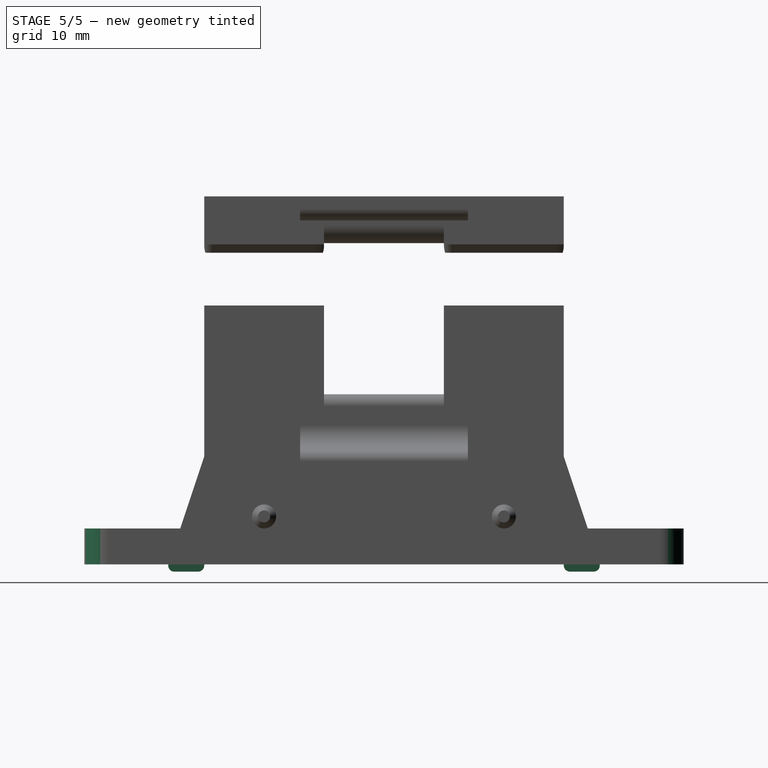
[diagram: stage 5 of 5 — right view after this stage's code; geometry added in this stage tinted green]
FEATURE [Part::Box] Box  label="Cube"
  Height = 0.6
  Length = 3
  Placement = pos=(3.5,15,-0.6) rot=(0,0,1;0rad)
  Width = 3
FEATURE [Part::Box] Box001  label="Cube001"
  Height = 0.6
  Length = 3
  Placement = pos=(3.5,-18,-0.6) rot=(0,0,1;0rad)
  Width = 3
FEATURE [Part::MultiFuse] Fusion001
  Shapes = -> [Box001,Box]
FEATURE [PartDesign::Fillet] Fillet016
  Base = -> Fillet014 [Edge62,Edge163,Edge96,Edge214]
  Radius = 2
FEATURE [PartDesign::Fillet] Fillet017
  Base = -> Fillet016 [Edge246]
  Radius = 0.5
FEATURE [PartDesign::Fillet] Fillet018
  Base = -> Fusion001 [Edge22,Edge17,Edge10,Edge5]
  Radius = 0.5
FEATURE [PartDesign::Fillet] Fillet019
  Base = -> Fillet017 [Edge21]
  Radius = 0.5
FEATURE [PartDesign::Fillet] Fillet021
  Base = -> Fillet019 [Edge46,Edge68]
  Radius = 1.5
FEATURE [Part::MultiFuse] Fusion002  label="Body"
  Shapes = -> [Fillet018,Fillet021]
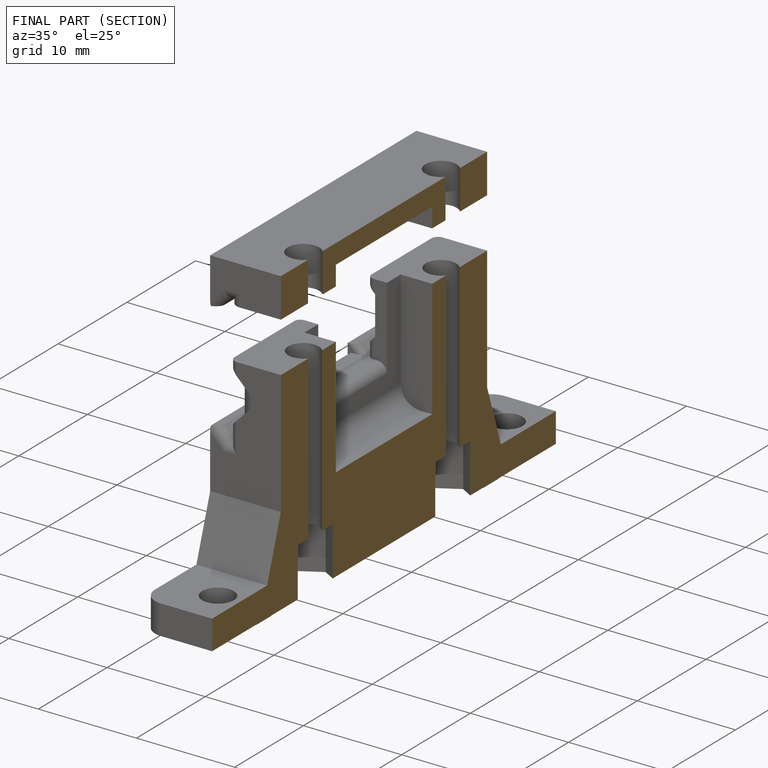
[diagram: finished part — half-section view (interior)]
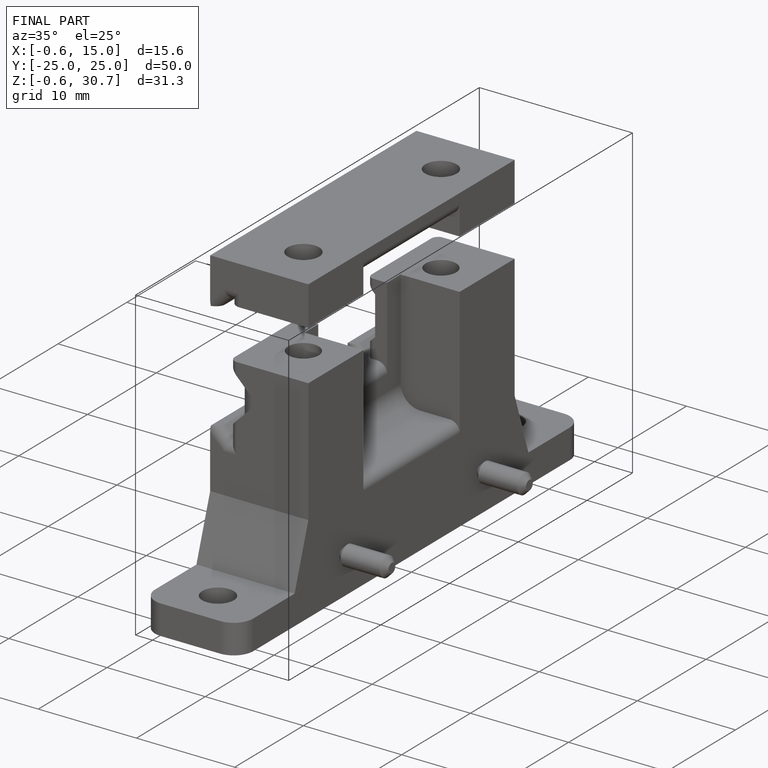
[diagram: finished part — iso view with bounding-box wireframe]
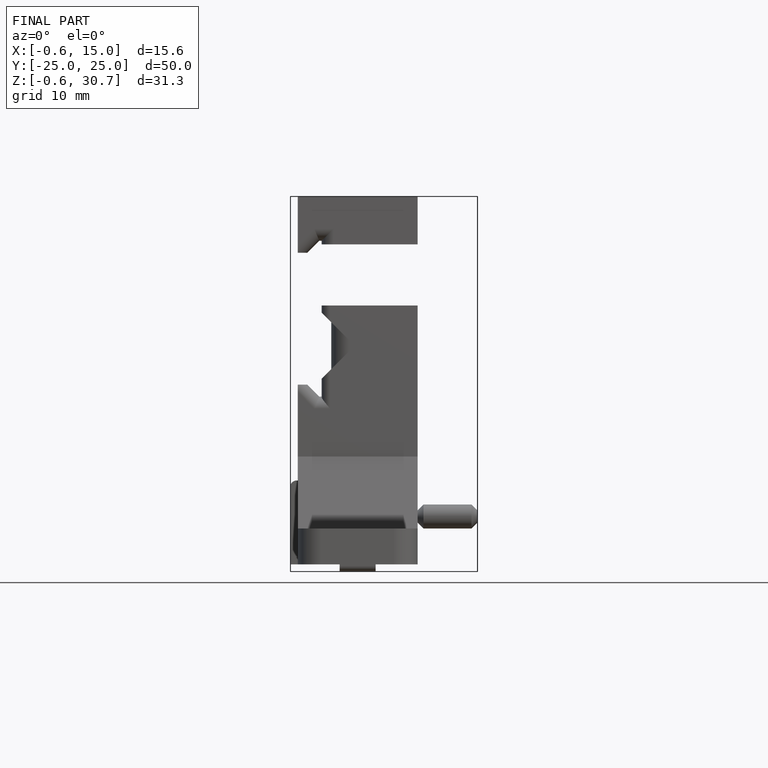
[diagram: finished part — front view with bounding-box wireframe]
